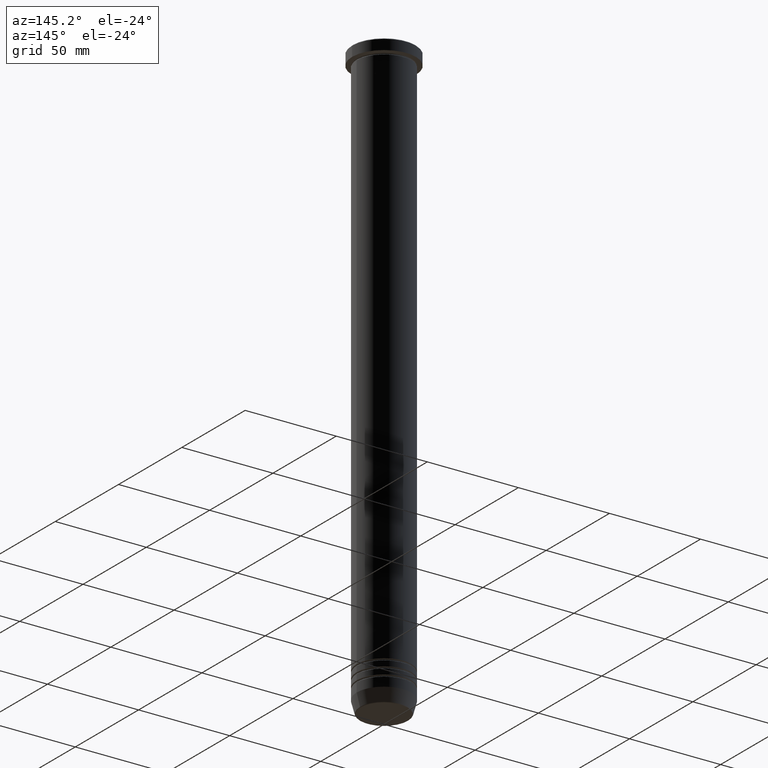
[diagram: clean part render]
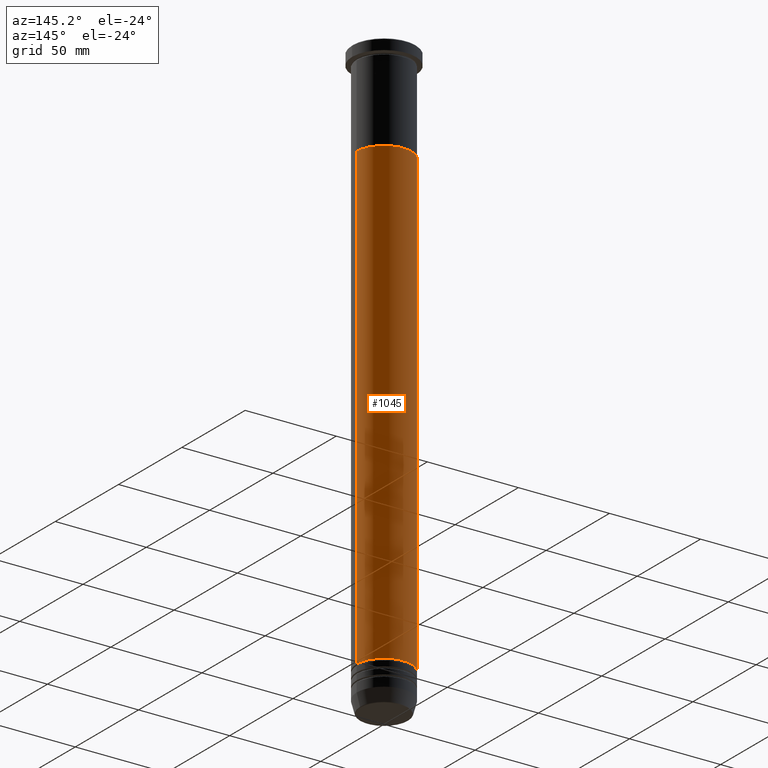
[diagram: same view with one face highlighted and labeled with its STEP entity id]
A machine part, auxiliary view. The second image highlights one B-rep face of the part: STEP entity #1045.
In plain terms, the highlighted cylindrical surface (edge-blend (fillet) strip) has radius 15 mm, axis along (-0, -0, 1).
Its self-contained STEP definition (entity closure, byte-faithful):
#4 = VERTEX_POINT ( 'NONE', #547 ) ;
#25 = ORIENTED_EDGE ( 'NONE', *, *, #687, .F. ) ;
#33 = CYLINDRICAL_SURFACE ( 'NONE', #894, 14.99999999999999645 ) ;
#85 = VECTOR ( 'NONE', #848, 1000.000000000000000 ) ;
#99 = DIRECTION ( 'NONE',  ( -0.000000000000000000, -0.000000000000000000, 1.000000000000000000 ) ) ;
#169 = CIRCLE ( 'NONE', #1084, 14.99999999999999112 ) ;
#181 = ORIENTED_EDGE ( 'NONE', *, *, #486, .F. ) ;
#233 = DIRECTION ( 'NONE',  ( 1.000000000000000000, 0.000000000000000000, 0.000000000000000000 ) ) ;
#253 = VERTEX_POINT ( 'NONE', #1015 ) ;
#296 = CARTESIAN_POINT ( 'NONE',  ( 0.000000000000000000, 0.000000000000000000, -304.9999999999999432 ) ) ;
#310 = CARTESIAN_POINT ( 'NONE',  ( 0.000000000000000000, 0.000000000000000000, 0.000000000000000000 ) ) ;
#335 = DIRECTION ( 'NONE',  ( -0.000000000000000000, -0.000000000000000000, 1.000000000000000000 ) ) ;
#376 = DIRECTION ( 'NONE',  ( 1.000000000000000000, 0.000000000000000000, 0.000000000000000000 ) ) ;
#410 = ORIENTED_EDGE ( 'NONE', *, *, #1037, .T. ) ;
#413 = LINE ( 'NONE', #702, #85 ) ;
#414 = EDGE_LOOP ( 'NONE', ( #410, #1080, #25, #181 ) ) ;
#426 = AXIS2_PLACEMENT_3D ( 'NONE', #1146, #335, #233 ) ;
#480 = FACE_OUTER_BOUND ( 'NONE', #414, .T. ) ;
#486 = EDGE_CURVE ( 'NONE', #588, #1083, #413, .T. ) ;
#547 = CARTESIAN_POINT ( 'NONE',  ( -15.00000000000000000, 1.836970198721029589E-15, -52.00000000000000000 ) ) ;
#588 = VERTEX_POINT ( 'NONE', #724 ) ;
#642 = DIRECTION ( 'NONE',  ( -0.000000000000000000, -0.000000000000000000, 1.000000000000000000 ) ) ;
#687 = EDGE_CURVE ( 'NONE', #1083, #4, #941, .T. ) ;
#702 = CARTESIAN_POINT ( 'NONE',  ( 14.99999999999999645, 0.000000000000000000, 0.000000000000000000 ) ) ;
#724 = CARTESIAN_POINT ( 'NONE',  ( 14.99999999999999112, 0.000000000000000000, -304.9999999999999432 ) ) ;
#824 = DIRECTION ( 'NONE',  ( 1.000000000000000000, 0.000000000000000000, 0.000000000000000000 ) ) ;
#848 = DIRECTION ( 'NONE',  ( -0.000000000000000000, -0.000000000000000000, 1.000000000000000000 ) ) ;
#894 = AXIS2_PLACEMENT_3D ( 'NONE', #310, #1012, #376 ) ;
#941 = CIRCLE ( 'NONE', #426, 15.00000000000000000 ) ;
#1012 = DIRECTION ( 'NONE',  ( -0.000000000000000000, -0.000000000000000000, 1.000000000000000000 ) ) ;
#1015 = CARTESIAN_POINT ( 'NONE',  ( -14.99999999999999112, 1.836970198721028800E-15, -304.9999999999999432 ) ) ;
#1037 = EDGE_CURVE ( 'NONE', #588, #253, #169, .T. ) ;
#1045 = ADVANCED_FACE ( 'NONE', ( #480 ), #33, .T. ) ;
#1059 = LINE ( 'NONE', #1070, #1128 ) ;
#1070 = CARTESIAN_POINT ( 'NONE',  ( -14.99999999999999645, 1.836970198721029194E-15, 0.000000000000000000 ) ) ;
#1080 = ORIENTED_EDGE ( 'NONE', *, *, #1133, .T. ) ;
#1083 = VERTEX_POINT ( 'NONE', #1118 ) ;
#1084 = AXIS2_PLACEMENT_3D ( 'NONE', #296, #642, #824 ) ;
#1118 = CARTESIAN_POINT ( 'NONE',  ( 15.00000000000000000, 0.000000000000000000, -52.00000000000000000 ) ) ;
#1128 = VECTOR ( 'NONE', #99, 1000.000000000000000 ) ;
#1133 = EDGE_CURVE ( 'NONE', #253, #4, #1059, .T. ) ;
#1146 = CARTESIAN_POINT ( 'NONE',  ( 0.000000000000000000, 0.000000000000000000, -52.00000000000000000 ) ) ;